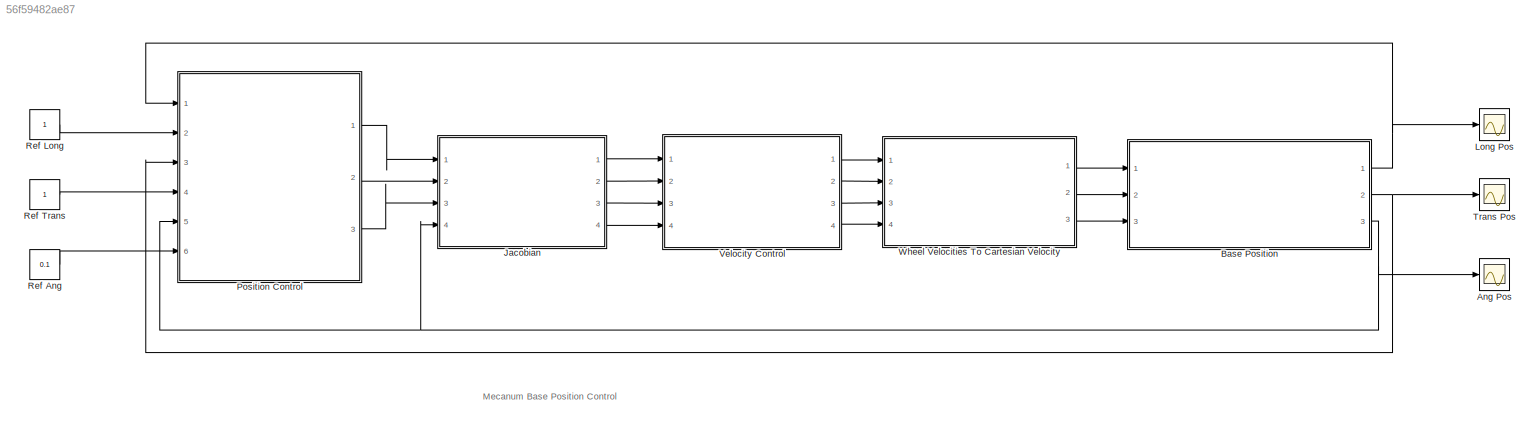
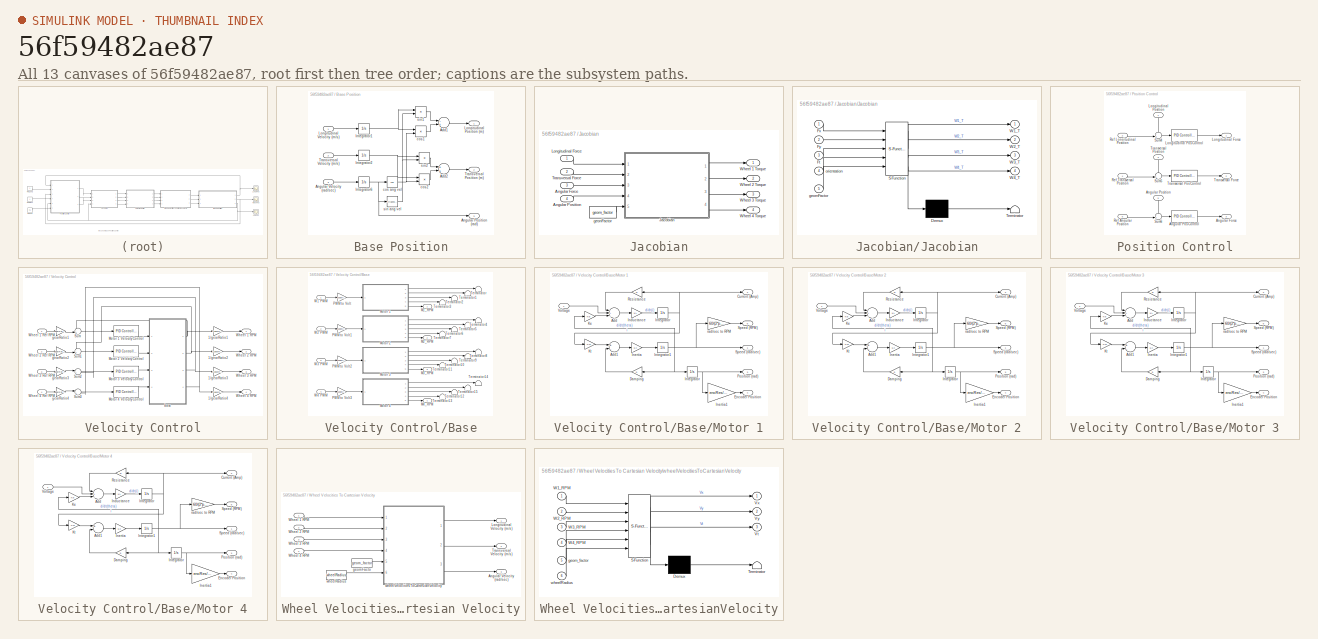
[diagram: thumbnail index - all 13 canvases of the model, root first then tree order]
MODEL slx_56f59482ae87
KIND model
CONFIG AbsTol = auto
CONFIG EnableMultiTasking = off
CONFIG FixedStep = 0.01
CONFIG MaxStep = auto
CONFIG MinStep = auto
CONFIG RelTol = 1e-3
CONFIG SampleTimeConstraint = Unconstrained
CONFIG Solver = ode14x
CONFIG SolverName = ode14x
CONFIG StartTime = 0.0
CONFIG StopTime = 20
BLOCK [Scope] Ang Pos
  NumInputPorts = 1
  Ports = [1]
  ScopeSpecificationString = Simulink.scopes.TimeScopeBlockCfg('CurrentConfiguration', extmgr.ConfigurationSet(extmgr.Configuration('Core','General UI',true),extmgr.Configuration('Core','Source UI',true),extmgr.Configuration('Sources','WiredSimulink',true,'DataLoggingVariableName','ScopeData2'),extmgr.Configuration('Visuals','Time Domain',true,'SerializedDisplays',{struct('MinYLimReal','-0.3925','MaxYLimReal','3.5325','YLabel...<+1368ch>
BLOCK [SubSystem] Base Position
  Ports = [3, 3]
  RequestExecContextInheritance = off
  Variant = off
BLOCK [Sum] Base Position/Add1
  InputSameDT = off
  Inputs = -+
  OutDataTypeStr = Inherit: Inherit via internal rule
  Ports = [2, 1]
  SaturateOnIntegerOverflow = off
BLOCK [Sum] Base Position/Add2
  InputSameDT = off
  OutDataTypeStr = Inherit: Inherit via internal rule
  Ports = [2, 1]
  SaturateOnIntegerOverflow = off
BLOCK [Outport] Base Position/Angular Position (rad)
  IconDisplay = Port number
  Port = 3
BLOCK [Inport] Base Position/Angular Velocity (rad//sec)
  IconDisplay = Port number
  Port = 3
BLOCK [Integrator] Base Position/Integrator1
  Ports = [1, 1]
BLOCK [Integrator] Base Position/Integrator2
  Ports = [1, 1]
BLOCK [Integrator] Base Position/Integrator6
  Ports = [1, 1]
BLOCK [Outport] Base Position/Longitudinal Position (m)
  IconDisplay = Port number
BLOCK [Inport] Base Position/Longitudinal Velocity (m//s)
  IconDisplay = Port number
BLOCK [Outport] Base Position/Transversal Position (m)
  IconDisplay = Port number
  Port = 2
BLOCK [Inport] Base Position/Transversal Velocity (m//s)
  IconDisplay = Port number
  Port = 2
BLOCK [Trigonometry] Base Position/cos ang vel
  Operator = cos
  Ports = [1, 1]
BLOCK [Product] Base Position/cos1
  InputSameDT = off
  OutDataTypeStr = Inherit: Inherit via internal rule
  Ports = [2, 1]
  RndMeth = Floor
  SaturateOnIntegerOverflow = off
BLOCK [Product] Base Position/cos2
  InputSameDT = off
  OutDataTypeStr = Inherit: Inherit via internal rule
  Ports = [2, 1]
  RndMeth = Floor
  SaturateOnIntegerOverflow = off
BLOCK [Trigonometry] Base Position/sin ang vel
  Ports = [1, 1]
BLOCK [Product] Base Position/sin1
  InputSameDT = off
  OutDataTypeStr = Inherit: Inherit via internal rule
  Ports = [2, 1]
  RndMeth = Floor
  SaturateOnIntegerOverflow = off
BLOCK [Product] Base Position/sin2
  InputSameDT = off
  OutDataTypeStr = Inherit: Inherit via internal rule
  Ports = [2, 1]
  RndMeth = Floor
  SaturateOnIntegerOverflow = off
BLOCK [SubSystem] Jacobian
  Ports = [4, 4]
  RequestExecContextInheritance = off
  Variant = off
BLOCK [Inport] Jacobian/Angular Force
  IconDisplay = Port number
  Port = 3
BLOCK [Inport] Jacobian/Angular Position
  IconDisplay = Port number
  Port = 4
BLOCK [SubSystem] Jacobian/Jacobian
  ErrorFcn = Stateflow.Translate.translate
  PermitHierarchicalResolution = ExplicitOnly
  Ports = [5, 4]
  RequestExecContextInheritance = off
  SFBlockType = MATLAB Function
  TreatAsAtomicUnit = on
  Variant = off
BLOCK [Demux] Jacobian/Jacobian/ Demux 
  Outputs = 1
  Ports = [1, 1]
BLOCK [S-Function] Jacobian/Jacobian/ SFunction 
  EnableBusSupport = on
  FunctionName = sf_sfun
  PortCounts = [5 5]
  Ports = [5, 5]
  SFcnIsStateOwnerBlock = off
  SFunctionDeploymentMode = off
  Tag = Stateflow S-Function baseModel 4
BLOCK [Terminator] Jacobian/Jacobian/ Terminator 
BLOCK [Inport] Jacobian/Jacobian/Ft
  IconDisplay = Port number
  Port = 3
BLOCK [Inport] Jacobian/Jacobian/Fx
  IconDisplay = Port number
BLOCK [Inport] Jacobian/Jacobian/Fy
  IconDisplay = Port number
  Port = 2
BLOCK [Outport] Jacobian/Jacobian/W1_T
  IconDisplay = Port number
BLOCK [Outport] Jacobian/Jacobian/W2_T
  IconDisplay = Port number
  Port = 2
BLOCK [Outport] Jacobian/Jacobian/W3_T
  IconDisplay = Port number
  Port = 3
BLOCK [Outport] Jacobian/Jacobian/W4_T
  IconDisplay = Port number
  Port = 4
BLOCK [Inport] Jacobian/Jacobian/geomFactor
  IconDisplay = Port number
  Port = 5
BLOCK [Inport] Jacobian/Jacobian/orientation
  IconDisplay = Port number
  Port = 4
BLOCK [Inport] Jacobian/Longitudinal Force
  IconDisplay = Port number
BLOCK [Inport] Jacobian/Transversal Force
  IconDisplay = Port number
  Port = 2
BLOCK [Outport] Jacobian/Wheel 1 Torque
  IconDisplay = Port number
BLOCK [Outport] Jacobian/Wheel 2 Torque
  IconDisplay = Port number
  Port = 2
BLOCK [Outport] Jacobian/Wheel 3 Torque
  IconDisplay = Port number
  Port = 3
BLOCK [Outport] Jacobian/Wheel 4 Torque
  IconDisplay = Port number
  Port = 4
BLOCK [Constant] Jacobian/geonFactor
  Value = geom_factor
BLOCK [Scope] Long Pos
  NumInputPorts = 1
  Ports = [1]
  ScopeSpecificationString = Simulink.scopes.TimeScopeBlockCfg('CurrentConfiguration', extmgr.ConfigurationSet(extmgr.Configuration('Core','General UI',true),extmgr.Configuration('Core','Source UI',true),extmgr.Configuration('Sources','WiredSimulink',true),extmgr.Configuration('Visuals','Time Domain',true,'SerializedDisplays',{struct('MinYLimReal','-0.29005','MaxYLimReal','1.78063','YLabelReal','','MinYLimMag','0.00000','MaxY...<+1335ch>
BLOCK [SubSystem] Position Control
  Ports = [6, 3]
  RequestExecContextInheritance = off
  Variant = off
BLOCK [Outport] Position Control/Angular Force
  IconDisplay = Port number
  Port = 3
BLOCK [Reference] Position Control/Angular Pos Control  REF=simulink/Continuous/PID Controller
  Ports = [1, 1]
  SourceBlock = simulink/Continuous/PID Controller
  SourceType = PID 1dof
BLOCK [Inport] Position Control/Angular Position
  IconDisplay = Port number
  Port = 5
BLOCK [Outport] Position Control/Longitudinal Force
  IconDisplay = Port number
BLOCK [Reference] Position Control/Longitudinal Pos Control  REF=simulink/Continuous/PID Controller
  Ports = [1, 1]
  SourceBlock = simulink/Continuous/PID Controller
  SourceType = PID 1dof
BLOCK [Inport] Position Control/Longitudinal Position
  IconDisplay = Port number
BLOCK [Inport] Position Control/Ref Angular Position
  IconDisplay = Port number
  Port = 6
BLOCK [Inport] Position Control/Ref Longitudinal Position
  IconDisplay = Port number
  Port = 2
BLOCK [Inport] Position Control/Ref Transversal Position
  IconDisplay = Port number
  Port = 4
BLOCK [Sum] Position Control/Sum4
  IconShape = round
  InputSameDT = off
  Inputs = -+|
  OutDataTypeStr = Inherit: Inherit via internal rule
  Ports = [2, 1]
  SaturateOnIntegerOverflow = off
BLOCK [Sum] Position Control/Sum5
  IconShape = round
  InputSameDT = off
  Inputs = -+|
  OutDataTypeStr = Inherit: Inherit via internal rule
  Ports = [2, 1]
  SaturateOnIntegerOverflow = off
BLOCK [Sum] Position Control/Sum6
  IconShape = round
  InputSameDT = off
  Inputs = -+|
  OutDataTypeStr = Inherit: Inherit via internal rule
  Ports = [2, 1]
  SaturateOnIntegerOverflow = off
BLOCK [Outport] Position Control/Transversal Force
  IconDisplay = Port number
  Port = 2
BLOCK [Reference] Position Control/Transversal Pos Control  REF=simulink/Continuous/PID Controller
  Ports = [1, 1]
  SourceBlock = simulink/Continuous/PID Controller
  SourceType = PID 1dof
BLOCK [Inport] Position Control/Transversal Position
  IconDisplay = Port number
  Port = 3
BLOCK [Constant] Ref Ang
  Value = 0.1
BLOCK [Constant] Ref Long
BLOCK [Constant] Ref Trans
BLOCK [Scope] Trans Pos
  NumInputPorts = 1
  Ports = [1]
  ScopeSpecificationString = Simulink.scopes.TimeScopeBlockCfg('CurrentConfiguration', extmgr.ConfigurationSet(extmgr.Configuration('Core','General UI',true),extmgr.Configuration('Core','Source UI',true),extmgr.Configuration('Sources','WiredSimulink',true,'DataLoggingVariableName','ScopeData1'),extmgr.Configuration('Visuals','Time Domain',true,'SerializedDisplays',{struct('MinYLimReal','-0.29005','MaxYLimReal','1.78063','YLab...<+1374ch>
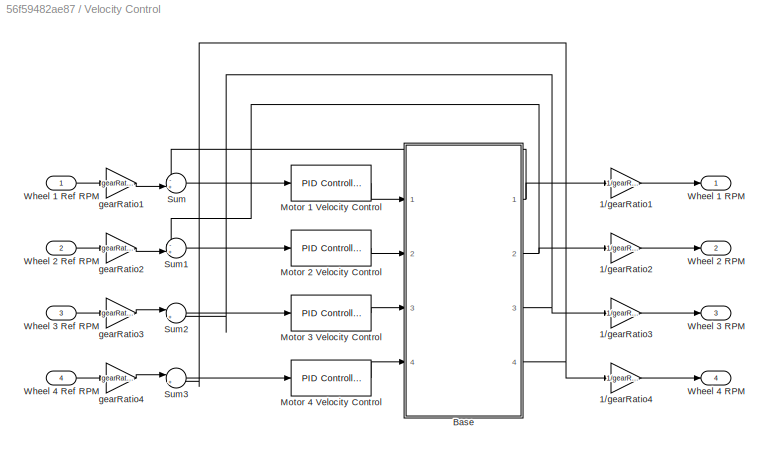
BLOCK [SubSystem] Velocity Control
  Ports = [4, 4]
  RequestExecContextInheritance = off
  Variant = off
BLOCK [Gain] Velocity Control/1//gearRatio1
  Gain = 1/gearRatio
  OutDataTypeStr = Inherit: Inherit via internal rule
  ParamDataTypeStr = Inherit: Inherit via internal rule
  SaturateOnIntegerOverflow = off
BLOCK [Gain] Velocity Control/1//gearRatio2
  Gain = 1/gearRatio
  OutDataTypeStr = Inherit: Inherit via internal rule
  ParamDataTypeStr = Inherit: Inherit via internal rule
  SaturateOnIntegerOverflow = off
BLOCK [Gain] Velocity Control/1//gearRatio3
  Gain = 1/gearRatio
  OutDataTypeStr = Inherit: Inherit via internal rule
  ParamDataTypeStr = Inherit: Inherit via internal rule
  SaturateOnIntegerOverflow = off
BLOCK [Gain] Velocity Control/1//gearRatio4
  Gain = 1/gearRatio
  OutDataTypeStr = Inherit: Inherit via internal rule
  ParamDataTypeStr = Inherit: Inherit via internal rule
  SaturateOnIntegerOverflow = off
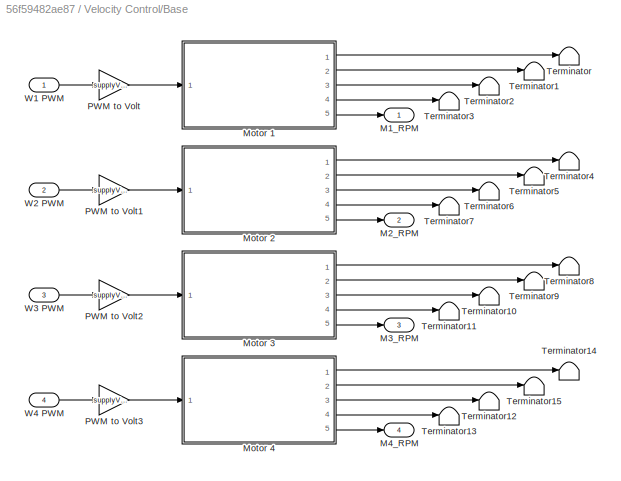
BLOCK [SubSystem] Velocity Control/Base
  Ports = [4, 4]
  RequestExecContextInheritance = off
  Variant = off
BLOCK [Outport] Velocity Control/Base/M1_RPM
  IconDisplay = Port number
BLOCK [Outport] Velocity Control/Base/M2_RPM
  IconDisplay = Port number
  Port = 2
BLOCK [Outport] Velocity Control/Base/M3_RPM
  IconDisplay = Port number
  Port = 3
BLOCK [Outport] Velocity Control/Base/M4_RPM
  IconDisplay = Port number
  Port = 4
BLOCK [SubSystem] Velocity Control/Base/Motor 1
  Ports = [1, 5]
  RequestExecContextInheritance = off
  Variant = off
BLOCK [Sum] Velocity Control/Base/Motor 1/Add
  InputSameDT = off
  Inputs = -+-
  OutDataTypeStr = Inherit: Inherit via internal rule
  Ports = [3, 1]
  SaturateOnIntegerOverflow = off
BLOCK [Sum] Velocity Control/Base/Motor 1/Add1
  InputSameDT = off
  Inputs = +-
  OutDataTypeStr = Inherit: Inherit via internal rule
  Ports = [2, 1]
  SaturateOnIntegerOverflow = off
BLOCK [Outport] Velocity Control/Base/Motor 1/Current (Amp)
  IconDisplay = Port number
  Port = 2
BLOCK [Gain] Velocity Control/Base/Motor 1/Damping
  Gain = b
  OutDataTypeStr = Inherit: Inherit via internal rule
  ParamDataTypeStr = Inherit: Inherit via internal rule
  SaturateOnIntegerOverflow = off
BLOCK [Outport] Velocity Control/Base/Motor 1/Encoder Position
  IconDisplay = Port number
  Port = 4
BLOCK [Gain] Velocity Control/Base/Motor 1/Inductance
  Gain = 1/L
  OutDataTypeStr = Inherit: Inherit via internal rule
  ParamDataTypeStr = Inherit: Inherit via internal rule
  SaturateOnIntegerOverflow = off
BLOCK [Gain] Velocity Control/Base/Motor 1/Inertia
  Gain = 1/J
  OutDataTypeStr = Inherit: Inherit via internal rule
  ParamDataTypeStr = Inherit: Inherit via internal rule
  SaturateOnIntegerOverflow = off
BLOCK [Gain] Velocity Control/Base/Motor 1/Inertia1
  Gain = encRes/(2*pi)
  OutDataTypeStr = Inherit: Inherit via internal rule
  ParamDataTypeStr = Inherit: Inherit via internal rule
  SaturateOnIntegerOverflow = off
BLOCK [Integrator] Velocity Control/Base/Motor 1/Integrator
  Ports = [1, 1]
BLOCK [Integrator] Velocity Control/Base/Motor 1/Integrator 
  Ports = [1, 1]
BLOCK [Integrator] Velocity Control/Base/Motor 1/Integrator1
  Ports = [1, 1]
BLOCK [Gain] Velocity Control/Base/Motor 1/Ke
  Gain = Kb
  OutDataTypeStr = Inherit: Inherit via internal rule
  ParamDataTypeStr = Inherit: Inherit via internal rule
  SaturateOnIntegerOverflow = off
BLOCK [Gain] Velocity Control/Base/Motor 1/Kt
  Gain = Km
  OutDataTypeStr = Inherit: Inherit via internal rule
  ParamDataTypeStr = Inherit: Inherit via internal rule
  SaturateOnIntegerOverflow = off
BLOCK [Outport] Velocity Control/Base/Motor 1/Position (rad)
  IconDisplay = Port number
  Port = 3
BLOCK [Gain] Velocity Control/Base/Motor 1/Resistance
  Gain = R
  OutDataTypeStr = Inherit: Inherit via internal rule
  ParamDataTypeStr = Inherit: Inherit via internal rule
  SaturateOnIntegerOverflow = off
BLOCK [Outport] Velocity Control/Base/Motor 1/Speed (RPM)
  IconDisplay = Port number
  Port = 5
BLOCK [Outport] Velocity Control/Base/Motor 1/Speed (rad//sec)
  IconDisplay = Port number
BLOCK [Inport] Velocity Control/Base/Motor 1/Voltage
  IconDisplay = Port number
BLOCK [Gain] Velocity Control/Base/Motor 1/rad//sec to RPM
  Gain = 60/(2*pi)
  OutDataTypeStr = Inherit: Inherit via internal rule
  ParamDataTypeStr = Inherit: Inherit via internal rule
  SaturateOnIntegerOverflow = off
BLOCK [SubSystem] Velocity Control/Base/Motor 2
  Ports = [1, 5]
  RequestExecContextInheritance = off
  Variant = off
BLOCK [Sum] Velocity Control/Base/Motor 2/Add
  InputSameDT = off
  Inputs = -+-
  OutDataTypeStr = Inherit: Inherit via internal rule
  Ports = [3, 1]
  SaturateOnIntegerOverflow = off
BLOCK [Sum] Velocity Control/Base/Motor 2/Add1
  InputSameDT = off
  Inputs = +-
  OutDataTypeStr = Inherit: Inherit via internal rule
  Ports = [2, 1]
  SaturateOnIntegerOverflow = off
BLOCK [Outport] Velocity Control/Base/Motor 2/Current (Amp)
  IconDisplay = Port number
  Port = 2
BLOCK [Gain] Velocity Control/Base/Motor 2/Damping
  Gain = b
  OutDataTypeStr = Inherit: Inherit via internal rule
  ParamDataTypeStr = Inherit: Inherit via internal rule
  SaturateOnIntegerOverflow = off
BLOCK [Outport] Velocity Control/Base/Motor 2/Encoder Position
  IconDisplay = Port number
  Port = 4
BLOCK [Gain] Velocity Control/Base/Motor 2/Inductance
  Gain = 1/L
  OutDataTypeStr = Inherit: Inherit via internal rule
  ParamDataTypeStr = Inherit: Inherit via internal rule
  SaturateOnIntegerOverflow = off
BLOCK [Gain] Velocity Control/Base/Motor 2/Inertia
  Gain = 1/J
  OutDataTypeStr = Inherit: Inherit via internal rule
  ParamDataTypeStr = Inherit: Inherit via internal rule
  SaturateOnIntegerOverflow = off
BLOCK [Gain] Velocity Control/Base/Motor 2/Inertia1
  Gain = encRes/(2*pi)
  OutDataTypeStr = Inherit: Inherit via internal rule
  ParamDataTypeStr = Inherit: Inherit via internal rule
  SaturateOnIntegerOverflow = off
BLOCK [Integrator] Velocity Control/Base/Motor 2/Integrator
  Ports = [1, 1]
BLOCK [Integrator] Velocity Control/Base/Motor 2/Integrator 
  Ports = [1, 1]
BLOCK [Integrator] Velocity Control/Base/Motor 2/Integrator1
  Ports = [1, 1]
BLOCK [Gain] Velocity Control/Base/Motor 2/Ke
  Gain = Kb
  OutDataTypeStr = Inherit: Inherit via internal rule
  ParamDataTypeStr = Inherit: Inherit via internal rule
  SaturateOnIntegerOverflow = off
BLOCK [Gain] Velocity Control/Base/Motor 2/Kt
  Gain = Km
  OutDataTypeStr = Inherit: Inherit via internal rule
  ParamDataTypeStr = Inherit: Inherit via internal rule
  SaturateOnIntegerOverflow = off
BLOCK [Outport] Velocity Control/Base/Motor 2/Position (rad)
  IconDisplay = Port number
  Port = 3
BLOCK [Gain] Velocity Control/Base/Motor 2/Resistance
  Gain = R
  OutDataTypeStr = Inherit: Inherit via internal rule
  ParamDataTypeStr = Inherit: Inherit via internal rule
  SaturateOnIntegerOverflow = off
BLOCK [Outport] Velocity Control/Base/Motor 2/Speed (RPM)
  IconDisplay = Port number
  Port = 5
BLOCK [Outport] Velocity Control/Base/Motor 2/Speed (rad//sec)
  IconDisplay = Port number
BLOCK [Inport] Velocity Control/Base/Motor 2/Voltage
  IconDisplay = Port number
BLOCK [Gain] Velocity Control/Base/Motor 2/rad//sec to RPM
  Gain = 60/(2*pi)
  OutDataTypeStr = Inherit: Inherit via internal rule
  ParamDataTypeStr = Inherit: Inherit via internal rule
  SaturateOnIntegerOverflow = off
BLOCK [SubSystem] Velocity Control/Base/Motor 3
  Ports = [1, 5]
  RequestExecContextInheritance = off
  Variant = off
BLOCK [Sum] Velocity Control/Base/Motor 3/Add
  InputSameDT = off
  Inputs = -+-
  OutDataTypeStr = Inherit: Inherit via internal rule
  Ports = [3, 1]
  SaturateOnIntegerOverflow = off
BLOCK [Sum] Velocity Control/Base/Motor 3/Add1
  InputSameDT = off
  Inputs = +-
  OutDataTypeStr = Inherit: Inherit via internal rule
  Ports = [2, 1]
  SaturateOnIntegerOverflow = off
BLOCK [Outport] Velocity Control/Base/Motor 3/Current (Amp)
  IconDisplay = Port number
  Port = 2
BLOCK [Gain] Velocity Control/Base/Motor 3/Damping
  Gain = b
  OutDataTypeStr = Inherit: Inherit via internal rule
  ParamDataTypeStr = Inherit: Inherit via internal rule
  SaturateOnIntegerOverflow = off
BLOCK [Outport] Velocity Control/Base/Motor 3/Encoder Position
  IconDisplay = Port number
  Port = 4
BLOCK [Gain] Velocity Control/Base/Motor 3/Inductance
  Gain = 1/L
  OutDataTypeStr = Inherit: Inherit via internal rule
  ParamDataTypeStr = Inherit: Inherit via internal rule
  SaturateOnIntegerOverflow = off
BLOCK [Gain] Velocity Control/Base/Motor 3/Inertia
  Gain = 1/J
  OutDataTypeStr = Inherit: Inherit via internal rule
  ParamDataTypeStr = Inherit: Inherit via internal rule
  SaturateOnIntegerOverflow = off
BLOCK [Gain] Velocity Control/Base/Motor 3/Inertia1
  Gain = encRes/(2*pi)
  OutDataTypeStr = Inherit: Inherit via internal rule
  ParamDataTypeStr = Inherit: Inherit via internal rule
  SaturateOnIntegerOverflow = off
BLOCK [Integrator] Velocity Control/Base/Motor 3/Integrator
  Ports = [1, 1]
BLOCK [Integrator] Velocity Control/Base/Motor 3/Integrator 
  Ports = [1, 1]
BLOCK [Integrator] Velocity Control/Base/Motor 3/Integrator1
  Ports = [1, 1]
BLOCK [Gain] Velocity Control/Base/Motor 3/Ke
  Gain = Kb
  OutDataTypeStr = Inherit: Inherit via internal rule
  ParamDataTypeStr = Inherit: Inherit via internal rule
  SaturateOnIntegerOverflow = off
BLOCK [Gain] Velocity Control/Base/Motor 3/Kt
  Gain = Km
  OutDataTypeStr = Inherit: Inherit via internal rule
  ParamDataTypeStr = Inherit: Inherit via internal rule
  SaturateOnIntegerOverflow = off
BLOCK [Outport] Velocity Control/Base/Motor 3/Position (rad)
  IconDisplay = Port number
  Port = 3
BLOCK [Gain] Velocity Control/Base/Motor 3/Resistance
  Gain = R
  OutDataTypeStr = Inherit: Inherit via internal rule
  ParamDataTypeStr = Inherit: Inherit via internal rule
  SaturateOnIntegerOverflow = off
BLOCK [Outport] Velocity Control/Base/Motor 3/Speed (RPM)
  IconDisplay = Port number
  Port = 5
BLOCK [Outport] Velocity Control/Base/Motor 3/Speed (rad//sec)
  IconDisplay = Port number
BLOCK [Inport] Velocity Control/Base/Motor 3/Voltage
  IconDisplay = Port number
BLOCK [Gain] Velocity Control/Base/Motor 3/rad//sec to RPM
  Gain = 60/(2*pi)
  OutDataTypeStr = Inherit: Inherit via internal rule
  ParamDataTypeStr = Inherit: Inherit via internal rule
  SaturateOnIntegerOverflow = off
BLOCK [SubSystem] Velocity Control/Base/Motor 4
  Ports = [1, 5]
  RequestExecContextInheritance = off
  Variant = off
BLOCK [Sum] Velocity Control/Base/Motor 4/Add
  InputSameDT = off
  Inputs = -+-
  OutDataTypeStr = Inherit: Inherit via internal rule
  Ports = [3, 1]
  SaturateOnIntegerOverflow = off
BLOCK [Sum] Velocity Control/Base/Motor 4/Add1
  InputSameDT = off
  Inputs = +-
  OutDataTypeStr = Inherit: Inherit via internal rule
  Ports = [2, 1]
  SaturateOnIntegerOverflow = off
BLOCK [Outport] Velocity Control/Base/Motor 4/Current (Amp)
  IconDisplay = Port number
  Port = 2
BLOCK [Gain] Velocity Control/Base/Motor 4/Damping
  Gain = b
  OutDataTypeStr = Inherit: Inherit via internal rule
  ParamDataTypeStr = Inherit: Inherit via internal rule
  SaturateOnIntegerOverflow = off
BLOCK [Outport] Velocity Control/Base/Motor 4/Encoder Position
  IconDisplay = Port number
  Port = 4
BLOCK [Gain] Velocity Control/Base/Motor 4/Inductance
  Gain = 1/L
  OutDataTypeStr = Inherit: Inherit via internal rule
  ParamDataTypeStr = Inherit: Inherit via internal rule
  SaturateOnIntegerOverflow = off
BLOCK [Gain] Velocity Control/Base/Motor 4/Inertia
  Gain = 1/J
  OutDataTypeStr = Inherit: Inherit via internal rule
  ParamDataTypeStr = Inherit: Inherit via internal rule
  SaturateOnIntegerOverflow = off
BLOCK [Gain] Velocity Control/Base/Motor 4/Inertia1
  Gain = encRes/(2*pi)
  OutDataTypeStr = Inherit: Inherit via internal rule
  ParamDataTypeStr = Inherit: Inherit via internal rule
  SaturateOnIntegerOverflow = off
BLOCK [Integrator] Velocity Control/Base/Motor 4/Integrator
  Ports = [1, 1]
BLOCK [Integrator] Velocity Control/Base/Motor 4/Integrator 
  Ports = [1, 1]
BLOCK [Integrator] Velocity Control/Base/Motor 4/Integrator1
  Ports = [1, 1]
BLOCK [Gain] Velocity Control/Base/Motor 4/Ke
  Gain = Kb
  OutDataTypeStr = Inherit: Inherit via internal rule
  ParamDataTypeStr = Inherit: Inherit via internal rule
  SaturateOnIntegerOverflow = off
BLOCK [Gain] Velocity Control/Base/Motor 4/Kt
  Gain = Km
  OutDataTypeStr = Inherit: Inherit via internal rule
  ParamDataTypeStr = Inherit: Inherit via internal rule
  SaturateOnIntegerOverflow = off
BLOCK [Outport] Velocity Control/Base/Motor 4/Position (rad)
  IconDisplay = Port number
  Port = 3
BLOCK [Gain] Velocity Control/Base/Motor 4/Resistance
  Gain = R
  OutDataTypeStr = Inherit: Inherit via internal rule
  ParamDataTypeStr = Inherit: Inherit via internal rule
  SaturateOnIntegerOverflow = off
BLOCK [Outport] Velocity Control/Base/Motor 4/Speed (RPM)
  IconDisplay = Port number
  Port = 5
BLOCK [Outport] Velocity Control/Base/Motor 4/Speed (rad//sec)
  IconDisplay = Port number
BLOCK [Inport] Velocity Control/Base/Motor 4/Voltage
  IconDisplay = Port number
BLOCK [Gain] Velocity Control/Base/Motor 4/rad//sec to RPM
  Gain = 60/(2*pi)
  OutDataTypeStr = Inherit: Inherit via internal rule
  ParamDataTypeStr = Inherit: Inherit via internal rule
  SaturateOnIntegerOverflow = off
BLOCK [Gain] Velocity Control/Base/PWM to Volt
  Gain = supplyVoltage/pwmRes
  OutDataTypeStr = Inherit: Inherit via internal rule
  ParamDataTypeStr = Inherit: Inherit via internal rule
  SaturateOnIntegerOverflow = off
BLOCK [Gain] Velocity Control/Base/PWM to Volt1
  Gain = supplyVoltage/pwmRes
  OutDataTypeStr = Inherit: Inherit via internal rule
  ParamDataTypeStr = Inherit: Inherit via internal rule
  SaturateOnIntegerOverflow = off
BLOCK [Gain] Velocity Control/Base/PWM to Volt2
  Gain = supplyVoltage/pwmRes
  OutDataTypeStr = Inherit: Inherit via internal rule
  ParamDataTypeStr = Inherit: Inherit via internal rule
  SaturateOnIntegerOverflow = off
BLOCK [Gain] Velocity Control/Base/PWM to Volt3
  Gain = supplyVoltage/pwmRes
  OutDataTypeStr = Inherit: Inherit via internal rule
  ParamDataTypeStr = Inherit: Inherit via internal rule
  SaturateOnIntegerOverflow = off
BLOCK [Terminator] Velocity Control/Base/Terminator
BLOCK [Terminator] Velocity Control/Base/Terminator1
BLOCK [Terminator] Velocity Control/Base/Terminator10
BLOCK [Terminator] Velocity Control/Base/Terminator11
BLOCK [Terminator] Velocity Control/Base/Terminator12
BLOCK [Terminator] Velocity Control/Base/Terminator13
BLOCK [Terminator] Velocity Control/Base/Terminator14
BLOCK [Terminator] Velocity Control/Base/Terminator15
BLOCK [Terminator] Velocity Control/Base/Terminator2
BLOCK [Terminator] Velocity Control/Base/Terminator3
BLOCK [Terminator] Velocity Control/Base/Terminator4
BLOCK [Terminator] Velocity Control/Base/Terminator5
BLOCK [Terminator] Velocity Control/Base/Terminator6
BLOCK [Terminator] Velocity Control/Base/Terminator7
BLOCK [Terminator] Velocity Control/Base/Terminator8
BLOCK [Terminator] Velocity Control/Base/Terminator9
BLOCK [Inport] Velocity Control/Base/W1 PWM
  IconDisplay = Port number
BLOCK [Inport] Velocity Control/Base/W2 PWM
  IconDisplay = Port number
  Port = 2
BLOCK [Inport] Velocity Control/Base/W3 PWM
  IconDisplay = Port number
  Port = 3
BLOCK [Inport] Velocity Control/Base/W4 PWM
  IconDisplay = Port number
  Port = 4
BLOCK [Reference] Velocity Control/Motor 1 Velocity Control  REF=simulink/Continuous/PID Controller
  Ports = [1, 1]
  SourceBlock = simulink/Continuous/PID Controller
  SourceType = PID 1dof
BLOCK [Reference] Velocity Control/Motor 2 Velocity Control  REF=simulink/Continuous/PID Controller
  Ports = [1, 1]
  SourceBlock = simulink/Continuous/PID Controller
  SourceType = PID 1dof
BLOCK [Reference] Velocity Control/Motor 3 Velocity Control  REF=simulink/Continuous/PID Controller
  Ports = [1, 1]
  SourceBlock = simulink/Continuous/PID Controller
  SourceType = PID 1dof
BLOCK [Reference] Velocity Control/Motor 4 Velocity Control  REF=simulink/Continuous/PID Controller
  Ports = [1, 1]
  SourceBlock = simulink/Continuous/PID Controller
  SourceType = PID 1dof
BLOCK [Sum] Velocity Control/Sum
  IconShape = round
  InputSameDT = off
  Inputs = -+|
  OutDataTypeStr = Inherit: Inherit via internal rule
  Ports = [2, 1]
  SaturateOnIntegerOverflow = off
BLOCK [Sum] Velocity Control/Sum1
  IconShape = round
  InputSameDT = off
  Inputs = -+|
  OutDataTypeStr = Inherit: Inherit via internal rule
  Ports = [2, 1]
  SaturateOnIntegerOverflow = off
BLOCK [Sum] Velocity Control/Sum2
  IconShape = round
  InputSameDT = off
  Inputs = |+-
  OutDataTypeStr = Inherit: Inherit via internal rule
  Ports = [2, 1]
  SaturateOnIntegerOverflow = off
BLOCK [Sum] Velocity Control/Sum3
  IconShape = round
  InputSameDT = off
  Inputs = |+-
  OutDataTypeStr = Inherit: Inherit via internal rule
  Ports = [2, 1]
  SaturateOnIntegerOverflow = off
BLOCK [Outport] Velocity Control/Wheel 1 RPM
  IconDisplay = Port number
BLOCK [Inport] Velocity Control/Wheel 1 Ref RPM
  IconDisplay = Port number
BLOCK [Outport] Velocity Control/Wheel 2 RPM
  IconDisplay = Port number
  Port = 2
BLOCK [Inport] Velocity Control/Wheel 2 Ref RPM
  IconDisplay = Port number
  Port = 2
BLOCK [Outport] Velocity Control/Wheel 3 RPM
  IconDisplay = Port number
  Port = 3
BLOCK [Inport] Velocity Control/Wheel 3 Ref RPM
  IconDisplay = Port number
  Port = 3
BLOCK [Outport] Velocity Control/Wheel 4 RPM
  IconDisplay = Port number
  Port = 4
BLOCK [Inport] Velocity Control/Wheel 4 Ref RPM
  IconDisplay = Port number
  Port = 4
BLOCK [Gain] Velocity Control/gearRatio1
  Gain = gearRatio
  OutDataTypeStr = Inherit: Inherit via internal rule
  ParamDataTypeStr = Inherit: Inherit via internal rule
  SaturateOnIntegerOverflow = off
BLOCK [Gain] Velocity Control/gearRatio2
  Gain = gearRatio
  OutDataTypeStr = Inherit: Inherit via internal rule
  ParamDataTypeStr = Inherit: Inherit via internal rule
  SaturateOnIntegerOverflow = off
BLOCK [Gain] Velocity Control/gearRatio3
  Gain = gearRatio
  OutDataTypeStr = Inherit: Inherit via internal rule
  ParamDataTypeStr = Inherit: Inherit via internal rule
  SaturateOnIntegerOverflow = off
BLOCK [Gain] Velocity Control/gearRatio4 
  Gain = gearRatio
  OutDataTypeStr = Inherit: Inherit via internal rule
  ParamDataTypeStr = Inherit: Inherit via internal rule
  SaturateOnIntegerOverflow = off
BLOCK [SubSystem] Wheel Velocities To Cartesian Velocity
  Ports = [4, 3]
  RequestExecContextInheritance = off
  Variant = off
BLOCK [Outport] Wheel Velocities To Cartesian Velocity/Angular Velocity (rad//sec)
  IconDisplay = Port number
  Port = 3
BLOCK [Outport] Wheel Velocities To Cartesian Velocity/Longitudinal Velocity (m//s)
  IconDisplay = Port number
BLOCK [Outport] Wheel Velocities To Cartesian Velocity/Transversal Velocity (m//s)
  IconDisplay = Port number
  Port = 2
BLOCK [Inport] Wheel Velocities To Cartesian Velocity/Wheel 1 RPM
  IconDisplay = Port number
BLOCK [Inport] Wheel Velocities To Cartesian Velocity/Wheel 2 RPM
  IconDisplay = Port number
  Port = 2
BLOCK [Inport] Wheel Velocities To Cartesian Velocity/Wheel 3 RPM
  IconDisplay = Port number
  Port = 3
BLOCK [Inport] Wheel Velocities To Cartesian Velocity/Wheel 4 RPM
  IconDisplay = Port number
  Port = 4
BLOCK [Constant] Wheel Velocities To Cartesian Velocity/geomFacto
  Value = geom_factor
BLOCK [Constant] Wheel Velocities To Cartesian Velocity/wheelRadius
  Value = wheelRadius
BLOCK [SubSystem] Wheel Velocities To Cartesian Velocity/wheelVelocitiesToCartesianVelocity
  ErrorFcn = Stateflow.Translate.translate
  PermitHierarchicalResolution = ExplicitOnly
  Ports = [6, 3]
  RequestExecContextInheritance = off
  SFBlockType = MATLAB Function
  TreatAsAtomicUnit = on
  Variant = off
BLOCK [Demux] Wheel Velocities To Cartesian Velocity/wheelVelocitiesToCartesianVelocity/ Demux 
  Outputs = 1
  Ports = [1, 1]
BLOCK [S-Function] Wheel Velocities To Cartesian Velocity/wheelVelocitiesToCartesianVelocity/ SFunction 
  EnableBusSupport = on
  FunctionName = sf_sfun
  PortCounts = [6 4]
  Ports = [6, 4]
  SFcnIsStateOwnerBlock = off
  SFunctionDeploymentMode = off
  Tag = Stateflow S-Function baseModel 3
BLOCK [Terminator] Wheel Velocities To Cartesian Velocity/wheelVelocitiesToCartesianVelocity/ Terminator 
BLOCK [Outport] Wheel Velocities To Cartesian Velocity/wheelVelocitiesToCartesianVelocity/Vt
  IconDisplay = Port number
  Port = 3
BLOCK [Outport] Wheel Velocities To Cartesian Velocity/wheelVelocitiesToCartesianVelocity/Vx
  IconDisplay = Port number
BLOCK [Outport] Wheel Velocities To Cartesian Velocity/wheelVelocitiesToCartesianVelocity/Vy
  IconDisplay = Port number
  Port = 2
BLOCK [Inport] Wheel Velocities To Cartesian Velocity/wheelVelocitiesToCartesianVelocity/W1_RPM
  IconDisplay = Port number
BLOCK [Inport] Wheel Velocities To Cartesian Velocity/wheelVelocitiesToCartesianVelocity/W2_RPM
  IconDisplay = Port number
  Port = 2
BLOCK [Inport] Wheel Velocities To Cartesian Velocity/wheelVelocitiesToCartesianVelocity/W3_RPM
  IconDisplay = Port number
  Port = 3
BLOCK [Inport] Wheel Velocities To Cartesian Velocity/wheelVelocitiesToCartesianVelocity/W4_RPM
  IconDisplay = Port number
  Port = 4
BLOCK [Inport] Wheel Velocities To Cartesian Velocity/wheelVelocitiesToCartesianVelocity/geom_factor
  IconDisplay = Port number
  Port = 5
BLOCK [Inport] Wheel Velocities To Cartesian Velocity/wheelVelocitiesToCartesianVelocity/wheelRadius
  IconDisplay = Port number
  Port = 6
ANNOTATION (root): Mecanum Base Position Control
LINE Base Position/Add1:1 -> Base Position/Longitudinal Position (m):1
LINE Base Position/Add2:1 -> Base Position/Transversal Position (m):1
LINE Base Position/Angular Velocity (rad//sec):1 -> Base Position/Integrator6:1
NET Base Position/Integrator1:1 -> Base Position/cos1:1, Base Position/sin1:1
NET Base Position/Integrator2:1 -> Base Position/cos2:1, Base Position/sin2:1
NET Base Position/Integrator6:1 -> Base Position/Angular Position (rad):1, Base Position/cos ang vel:1, Base Position/sin ang vel:1
LINE Base Position/Longitudinal Velocity (m//s):1 -> Base Position/Integrator1:1
LINE Base Position/Transversal Velocity (m//s):1 -> Base Position/Integrator2:1
NET Base Position/cos ang vel:1 -> Base Position/cos1:2, Base Position/cos2:2
LINE Base Position/cos1:1 -> Base Position/Add1:2
LINE Base Position/cos2:1 -> Base Position/Add2:2
NET Base Position/sin ang vel:1 -> Base Position/sin1:2, Base Position/sin2:2
LINE Base Position/sin1:1 -> Base Position/Add1:1
LINE Base Position/sin2:1 -> Base Position/Add2:1
NET Base Position:1 -> Long Pos:1, Position Control:1
NET Base Position:2 -> Position Control:3, Trans Pos:1
NET Base Position:3 -> Ang Pos:1, Jacobian:4, Position Control:5
LINE Jacobian/Angular Force:1 -> Jacobian/Jacobian:3
LINE Jacobian/Angular Position:1 -> Jacobian/Jacobian:4
LINE Jacobian/Jacobian:1 -> Jacobian/Wheel 1 Torque:1
LINE Jacobian/Jacobian:2 -> Jacobian/Wheel 2 Torque:1
LINE Jacobian/Jacobian:3 -> Jacobian/Wheel 3 Torque:1
LINE Jacobian/Jacobian:4 -> Jacobian/Wheel 4 Torque:1
LINE Jacobian/Longitudinal Force:1 -> Jacobian/Jacobian:1
LINE Jacobian/Transversal Force:1 -> Jacobian/Jacobian:2
LINE Jacobian/geonFactor:1 -> Jacobian/Jacobian:5
LINE Jacobian:1 -> Velocity Control:1
LINE Jacobian:2 -> Velocity Control:2
LINE Jacobian:3 -> Velocity Control:3
LINE Jacobian:4 -> Velocity Control:4
LINE Position Control/Angular Pos Control:1 -> Position Control/Angular Force:1
LINE Position Control/Angular Position:1 -> Position Control/Sum6:1
LINE Position Control/Longitudinal Pos Control:1 -> Position Control/Longitudinal Force:1
LINE Position Control/Longitudinal Position:1 -> Position Control/Sum4:1
LINE Position Control/Ref Angular Position:1 -> Position Control/Sum6:2
LINE Position Control/Ref Longitudinal Position:1 -> Position Control/Sum4:2
LINE Position Control/Ref Transversal Position:1 -> Position Control/Sum5:2
LINE Position Control/Sum4:1 -> Position Control/Longitudinal Pos Control:1
LINE Position Control/Sum5:1 -> Position Control/Transversal Pos Control:1
LINE Position Control/Sum6:1 -> Position Control/Angular Pos Control:1
LINE Position Control/Transversal Pos Control:1 -> Position Control/Transversal Force:1
LINE Position Control/Transversal Position:1 -> Position Control/Sum5:1
LINE Position Control:1 -> Jacobian:1
LINE Position Control:2 -> Jacobian:2
LINE Position Control:3 -> Jacobian:3
LINE Ref Ang:1 -> Position Control:6
LINE Ref Long:1 -> Position Control:2
LINE Ref Trans:1 -> Position Control:4
LINE Velocity Control/1//gearRatio1:1 -> Velocity Control/Wheel 1 RPM:1
LINE Velocity Control/1//gearRatio2:1 -> Velocity Control/Wheel 2 RPM:1
LINE Velocity Control/1//gearRatio3:1 -> Velocity Control/Wheel 3 RPM:1
LINE Velocity Control/1//gearRatio4:1 -> Velocity Control/Wheel 4 RPM:1
LINE Velocity Control/Base/Motor 1/Add1:1 -> Velocity Control/Base/Motor 1/Inertia:1
LINE Velocity Control/Base/Motor 1/Add:1 -> Velocity Control/Base/Motor 1/Inductance:1
LINE Velocity Control/Base/Motor 1/Damping:1 -> Velocity Control/Base/Motor 1/Add1:2
LINE Velocity Control/Base/Motor 1/Inductance:1 -> Velocity Control/Base/Motor 1/Integrator:1
LINE Velocity Control/Base/Motor 1/Inertia1:1 -> Velocity Control/Base/Motor 1/Encoder Position:1
LINE Velocity Control/Base/Motor 1/Inertia:1 -> Velocity Control/Base/Motor 1/Integrator1:1
NET Velocity Control/Base/Motor 1/Integrator :1 -> Velocity Control/Base/Motor 1/Inertia1:1, Velocity Control/Base/Motor 1/Position (rad):1
NET Velocity Control/Base/Motor 1/Integrator1:1 -> Velocity Control/Base/Motor 1/Damping:1, Velocity Control/Base/Motor 1/Integrator :1, Velocity Control/Base/Motor 1/Ke:1, Velocity Control/Base/Motor 1/Speed (rad//sec):1, Velocity Control/Base/Motor 1/rad//sec to RPM:1
NET Velocity Control/Base/Motor 1/Integrator:1 -> Velocity Control/Base/Motor 1/Current (Amp):1, Velocity Control/Base/Motor 1/Kt:1, Velocity Control/Base/Motor 1/Resistance:1
LINE Velocity Control/Base/Motor 1/Ke:1 -> Velocity Control/Base/Motor 1/Add:3
LINE Velocity Control/Base/Motor 1/Kt:1 -> Velocity Control/Base/Motor 1/Add1:1
LINE Velocity Control/Base/Motor 1/Resistance:1 -> Velocity Control/Base/Motor 1/Add:1
LINE Velocity Control/Base/Motor 1/Voltage:1 -> Velocity Control/Base/Motor 1/Add:2
LINE Velocity Control/Base/Motor 1/rad//sec to RPM:1 -> Velocity Control/Base/Motor 1/Speed (RPM):1
LINE Velocity Control/Base/Motor 1:1 -> Velocity Control/Base/Terminator:1
LINE Velocity Control/Base/Motor 1:2 -> Velocity Control/Base/Terminator1:1
LINE Velocity Control/Base/Motor 1:3 -> Velocity Control/Base/Terminator2:1
LINE Velocity Control/Base/Motor 1:4 -> Velocity Control/Base/Terminator3:1
LINE Velocity Control/Base/Motor 1:5 -> Velocity Control/Base/M1_RPM:1
LINE Velocity Control/Base/Motor 2/Add1:1 -> Velocity Control/Base/Motor 2/Inertia:1
LINE Velocity Control/Base/Motor 2/Add:1 -> Velocity Control/Base/Motor 2/Inductance:1
LINE Velocity Control/Base/Motor 2/Damping:1 -> Velocity Control/Base/Motor 2/Add1:2
LINE Velocity Control/Base/Motor 2/Inductance:1 -> Velocity Control/Base/Motor 2/Integrator:1
LINE Velocity Control/Base/Motor 2/Inertia1:1 -> Velocity Control/Base/Motor 2/Encoder Position:1
LINE Velocity Control/Base/Motor 2/Inertia:1 -> Velocity Control/Base/Motor 2/Integrator1:1
NET Velocity Control/Base/Motor 2/Integrator :1 -> Velocity Control/Base/Motor 2/Inertia1:1, Velocity Control/Base/Motor 2/Position (rad):1
NET Velocity Control/Base/Motor 2/Integrator1:1 -> Velocity Control/Base/Motor 2/Damping:1, Velocity Control/Base/Motor 2/Integrator :1, Velocity Control/Base/Motor 2/Ke:1, Velocity Control/Base/Motor 2/Speed (rad//sec):1, Velocity Control/Base/Motor 2/rad//sec to RPM:1
NET Velocity Control/Base/Motor 2/Integrator:1 -> Velocity Control/Base/Motor 2/Current (Amp):1, Velocity Control/Base/Motor 2/Kt:1, Velocity Control/Base/Motor 2/Resistance:1
LINE Velocity Control/Base/Motor 2/Ke:1 -> Velocity Control/Base/Motor 2/Add:3
LINE Velocity Control/Base/Motor 2/Kt:1 -> Velocity Control/Base/Motor 2/Add1:1
LINE Velocity Control/Base/Motor 2/Resistance:1 -> Velocity Control/Base/Motor 2/Add:1
LINE Velocity Control/Base/Motor 2/Voltage:1 -> Velocity Control/Base/Motor 2/Add:2
LINE Velocity Control/Base/Motor 2/rad//sec to RPM:1 -> Velocity Control/Base/Motor 2/Speed (RPM):1
LINE Velocity Control/Base/Motor 2:1 -> Velocity Control/Base/Terminator4:1
LINE Velocity Control/Base/Motor 2:2 -> Velocity Control/Base/Terminator5:1
LINE Velocity Control/Base/Motor 2:3 -> Velocity Control/Base/Terminator6:1
LINE Velocity Control/Base/Motor 2:4 -> Velocity Control/Base/Terminator7:1
LINE Velocity Control/Base/Motor 2:5 -> Velocity Control/Base/M2_RPM:1
LINE Velocity Control/Base/Motor 3/Add1:1 -> Velocity Control/Base/Motor 3/Inertia:1
LINE Velocity Control/Base/Motor 3/Add:1 -> Velocity Control/Base/Motor 3/Inductance:1
LINE Velocity Control/Base/Motor 3/Damping:1 -> Velocity Control/Base/Motor 3/Add1:2
LINE Velocity Control/Base/Motor 3/Inductance:1 -> Velocity Control/Base/Motor 3/Integrator:1
LINE Velocity Control/Base/Motor 3/Inertia1:1 -> Velocity Control/Base/Motor 3/Encoder Position:1
LINE Velocity Control/Base/Motor 3/Inertia:1 -> Velocity Control/Base/Motor 3/Integrator1:1
NET Velocity Control/Base/Motor 3/Integrator :1 -> Velocity Control/Base/Motor 3/Inertia1:1, Velocity Control/Base/Motor 3/Position (rad):1
NET Velocity Control/Base/Motor 3/Integrator1:1 -> Velocity Control/Base/Motor 3/Damping:1, Velocity Control/Base/Motor 3/Integrator :1, Velocity Control/Base/Motor 3/Ke:1, Velocity Control/Base/Motor 3/Speed (rad//sec):1, Velocity Control/Base/Motor 3/rad//sec to RPM:1
NET Velocity Control/Base/Motor 3/Integrator:1 -> Velocity Control/Base/Motor 3/Current (Amp):1, Velocity Control/Base/Motor 3/Kt:1, Velocity Control/Base/Motor 3/Resistance:1
LINE Velocity Control/Base/Motor 3/Ke:1 -> Velocity Control/Base/Motor 3/Add:3
LINE Velocity Control/Base/Motor 3/Kt:1 -> Velocity Control/Base/Motor 3/Add1:1
LINE Velocity Control/Base/Motor 3/Resistance:1 -> Velocity Control/Base/Motor 3/Add:1
LINE Velocity Control/Base/Motor 3/Voltage:1 -> Velocity Control/Base/Motor 3/Add:2
LINE Velocity Control/Base/Motor 3/rad//sec to RPM:1 -> Velocity Control/Base/Motor 3/Speed (RPM):1
LINE Velocity Control/Base/Motor 3:1 -> Velocity Control/Base/Terminator8:1
LINE Velocity Control/Base/Motor 3:2 -> Velocity Control/Base/Terminator9:1
LINE Velocity Control/Base/Motor 3:3 -> Velocity Control/Base/Terminator10:1
LINE Velocity Control/Base/Motor 3:4 -> Velocity Control/Base/Terminator11:1
LINE Velocity Control/Base/Motor 3:5 -> Velocity Control/Base/M3_RPM:1
LINE Velocity Control/Base/Motor 4/Add1:1 -> Velocity Control/Base/Motor 4/Inertia:1
LINE Velocity Control/Base/Motor 4/Add:1 -> Velocity Control/Base/Motor 4/Inductance:1
LINE Velocity Control/Base/Motor 4/Damping:1 -> Velocity Control/Base/Motor 4/Add1:2
LINE Velocity Control/Base/Motor 4/Inductance:1 -> Velocity Control/Base/Motor 4/Integrator:1
LINE Velocity Control/Base/Motor 4/Inertia1:1 -> Velocity Control/Base/Motor 4/Encoder Position:1
LINE Velocity Control/Base/Motor 4/Inertia:1 -> Velocity Control/Base/Motor 4/Integrator1:1
NET Velocity Control/Base/Motor 4/Integrator :1 -> Velocity Control/Base/Motor 4/Inertia1:1, Velocity Control/Base/Motor 4/Position (rad):1
NET Velocity Control/Base/Motor 4/Integrator1:1 -> Velocity Control/Base/Motor 4/Damping:1, Velocity Control/Base/Motor 4/Integrator :1, Velocity Control/Base/Motor 4/Ke:1, Velocity Control/Base/Motor 4/Speed (rad//sec):1, Velocity Control/Base/Motor 4/rad//sec to RPM:1
NET Velocity Control/Base/Motor 4/Integrator:1 -> Velocity Control/Base/Motor 4/Current (Amp):1, Velocity Control/Base/Motor 4/Kt:1, Velocity Control/Base/Motor 4/Resistance:1
LINE Velocity Control/Base/Motor 4/Ke:1 -> Velocity Control/Base/Motor 4/Add:3
LINE Velocity Control/Base/Motor 4/Kt:1 -> Velocity Control/Base/Motor 4/Add1:1
LINE Velocity Control/Base/Motor 4/Resistance:1 -> Velocity Control/Base/Motor 4/Add:1
LINE Velocity Control/Base/Motor 4/Voltage:1 -> Velocity Control/Base/Motor 4/Add:2
LINE Velocity Control/Base/Motor 4/rad//sec to RPM:1 -> Velocity Control/Base/Motor 4/Speed (RPM):1
LINE Velocity Control/Base/Motor 4:1 -> Velocity Control/Base/Terminator14:1
LINE Velocity Control/Base/Motor 4:2 -> Velocity Control/Base/Terminator15:1
LINE Velocity Control/Base/Motor 4:3 -> Velocity Control/Base/Terminator12:1
LINE Velocity Control/Base/Motor 4:4 -> Velocity Control/Base/Terminator13:1
LINE Velocity Control/Base/Motor 4:5 -> Velocity Control/Base/M4_RPM:1
LINE Velocity Control/Base/PWM to Volt1:1 -> Velocity Control/Base/Motor 2:1
LINE Velocity Control/Base/PWM to Volt2:1 -> Velocity Control/Base/Motor 3:1
LINE Velocity Control/Base/PWM to Volt3:1 -> Velocity Control/Base/Motor 4:1
LINE Velocity Control/Base/PWM to Volt:1 -> Velocity Control/Base/Motor 1:1
LINE Velocity Control/Base/W1 PWM:1 -> Velocity Control/Base/PWM to Volt:1
LINE Velocity Control/Base/W2 PWM:1 -> Velocity Control/Base/PWM to Volt1:1
LINE Velocity Control/Base/W3 PWM:1 -> Velocity Control/Base/PWM to Volt2:1
LINE Velocity Control/Base/W4 PWM:1 -> Velocity Control/Base/PWM to Volt3:1
NET Velocity Control/Base:1 -> Velocity Control/1//gearRatio1:1, Velocity Control/Sum:1
NET Velocity Control/Base:2 -> Velocity Control/1//gearRatio2:1, Velocity Control/Sum1:1
NET Velocity Control/Base:3 -> Velocity Control/1//gearRatio3:1, Velocity Control/Sum2:2
NET Velocity Control/Base:4 -> Velocity Control/1//gearRatio4:1, Velocity Control/Sum3:2
LINE Velocity Control/Motor 1 Velocity Control:1 -> Velocity Control/Base:1
LINE Velocity Control/Motor 2 Velocity Control:1 -> Velocity Control/Base:2
LINE Velocity Control/Motor 3 Velocity Control:1 -> Velocity Control/Base:3
LINE Velocity Control/Motor 4 Velocity Control:1 -> Velocity Control/Base:4
LINE Velocity Control/Sum1:1 -> Velocity Control/Motor 2 Velocity Control:1
LINE Velocity Control/Sum2:1 -> Velocity Control/Motor 3 Velocity Control:1
LINE Velocity Control/Sum3:1 -> Velocity Control/Motor 4 Velocity Control:1
LINE Velocity Control/Sum:1 -> Velocity Control/Motor 1 Velocity Control:1
LINE Velocity Control/Wheel 1 Ref RPM:1 -> Velocity Control/gearRatio1:1
LINE Velocity Control/Wheel 2 Ref RPM:1 -> Velocity Control/gearRatio2:1
LINE Velocity Control/Wheel 3 Ref RPM:1 -> Velocity Control/gearRatio3:1
LINE Velocity Control/Wheel 4 Ref RPM:1 -> Velocity Control/gearRatio4 :1
LINE Velocity Control/gearRatio1:1 -> Velocity Control/Sum:2
LINE Velocity Control/gearRatio2:1 -> Velocity Control/Sum1:2
LINE Velocity Control/gearRatio3:1 -> Velocity Control/Sum2:1
LINE Velocity Control/gearRatio4 :1 -> Velocity Control/Sum3:1
LINE Velocity Control:1 -> Wheel Velocities To Cartesian Velocity:1
LINE Velocity Control:2 -> Wheel Velocities To Cartesian Velocity:2
LINE Velocity Control:3 -> Wheel Velocities To Cartesian Velocity:3
LINE Velocity Control:4 -> Wheel Velocities To Cartesian Velocity:4
LINE Wheel Velocities To Cartesian Velocity/Wheel 1 RPM:1 -> Wheel Velocities To Cartesian Velocity/wheelVelocitiesToCartesianVelocity:1
LINE Wheel Velocities To Cartesian Velocity/Wheel 2 RPM:1 -> Wheel Velocities To Cartesian Velocity/wheelVelocitiesToCartesianVelocity:2
LINE Wheel Velocities To Cartesian Velocity/Wheel 3 RPM:1 -> Wheel Velocities To Cartesian Velocity/wheelVelocitiesToCartesianVelocity:3
LINE Wheel Velocities To Cartesian Velocity/Wheel 4 RPM:1 -> Wheel Velocities To Cartesian Velocity/wheelVelocitiesToCartesianVelocity:4
LINE Wheel Velocities To Cartesian Velocity/geomFacto:1 -> Wheel Velocities To Cartesian Velocity/wheelVelocitiesToCartesianVelocity:5
LINE Wheel Velocities To Cartesian Velocity/wheelRadius:1 -> Wheel Velocities To Cartesian Velocity/wheelVelocitiesToCartesianVelocity:6
LINE Wheel Velocities To Cartesian Velocity/wheelVelocitiesToCartesianVelocity:1 -> Wheel Velocities To Cartesian Velocity/Longitudinal Velocity (m//s):1
LINE Wheel Velocities To Cartesian Velocity/wheelVelocitiesToCartesianVelocity:2 -> Wheel Velocities To Cartesian Velocity/Transversal Velocity (m//s):1
LINE Wheel Velocities To Cartesian Velocity/wheelVelocitiesToCartesianVelocity:3 -> Wheel Velocities To Cartesian Velocity/Angular Velocity (rad//sec):1
LINE Wheel Velocities To Cartesian Velocity:1 -> Base Position:1
LINE Wheel Velocities To Cartesian Velocity:2 -> Base Position:2
LINE Wheel Velocities To Cartesian Velocity:3 -> Base Position:3
note: NET lines group one-source signal fan-out (src -> all destinations, sorted); 1:1 wires keep LINE
CHART Wheel Velocities To Cartesian Velocity/wheelVelocitiesToCartesianVelocity states=1 transitions=1
  STATE_LABEL 'eML_blk_kernel()'
  STATE_LABEL 'SCRIPT:\nfunction [Vx, Vy, Vt] = fcn(W1_RPM, W2_RPM, W3_RPM, W4_RPM, geom_factor, wheelRadius )\n\nW1_angVel = W1_RPM * 2 * pi / 60;\nW2_angVel = W2_RPM * 2 * pi / 60;\nW3_angVel = W3_RPM * 2 * pi / 60;\nW4_angVel = W4_RPM * 2 * pi / 60;\n\nVx = (W1_angVel + W2_angVel + W3_angVel + W4_angVel) * wheelRadius / 4;\nVy = (W1_angVel - W2_angVel - W3_angVel + W4_angVel) * wheelRadius / 4;\nVt = (W1_angVel - W2_an...<+63ch>'
CHART Jacobian/Jacobian states=1 transitions=1
  STATE_LABEL 'eML_blk_kernel()'
  STATE_LABEL 'SCRIPT:\nfunction [W1_T, W2_T, W3_T, W4_T] = fcn(Fx, Fy, Ft, orientation, geomFactor)\n\nW1_T = Fx*(cos(orientation)-sin(orientation))/sqrt(2) + Fy*(sin(orientation)+cos(orientation))/sqrt(2) + Ft*geomFactor*sqrt(2);\nW2_T = Fx*(cos(orientation)+sin(orientation))/sqrt(2) + Fy*(sin(orientation)-cos(orientation))/sqrt(2) - Ft*geomFactor*sqrt(2);\nW3_T = Fx*(cos(orientation)+sin(orientation))/sqrt(2) + Fy...<+197ch>'
